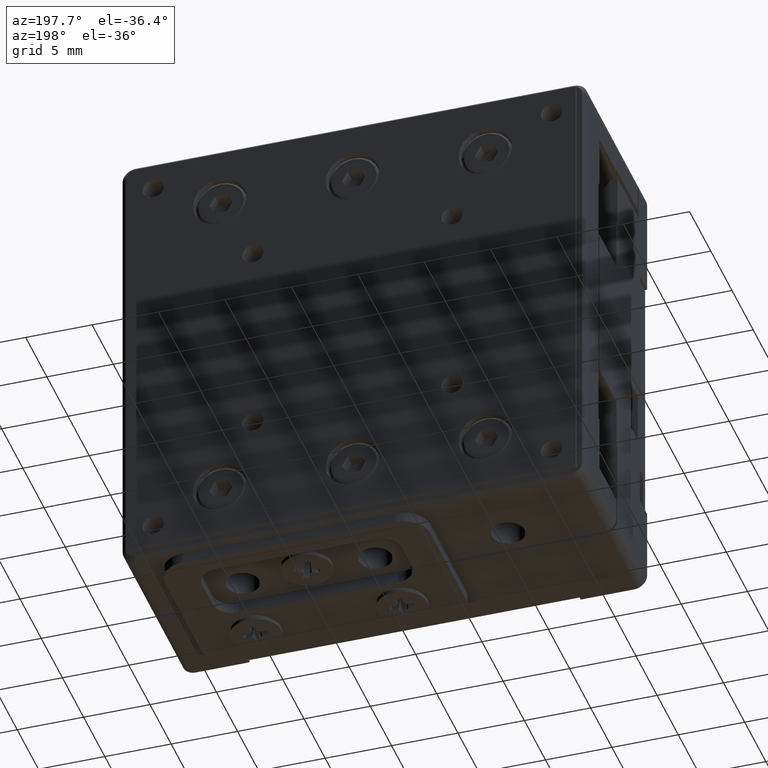
[diagram: clean part render]
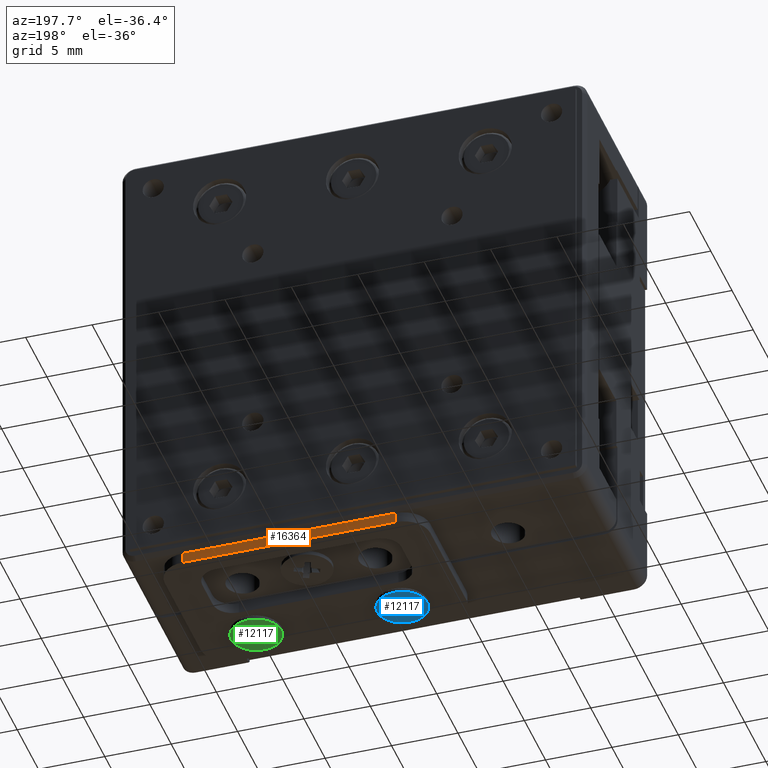
[diagram: same view with three faces highlighted in distinct colors, each labeled with its STEP entity id]
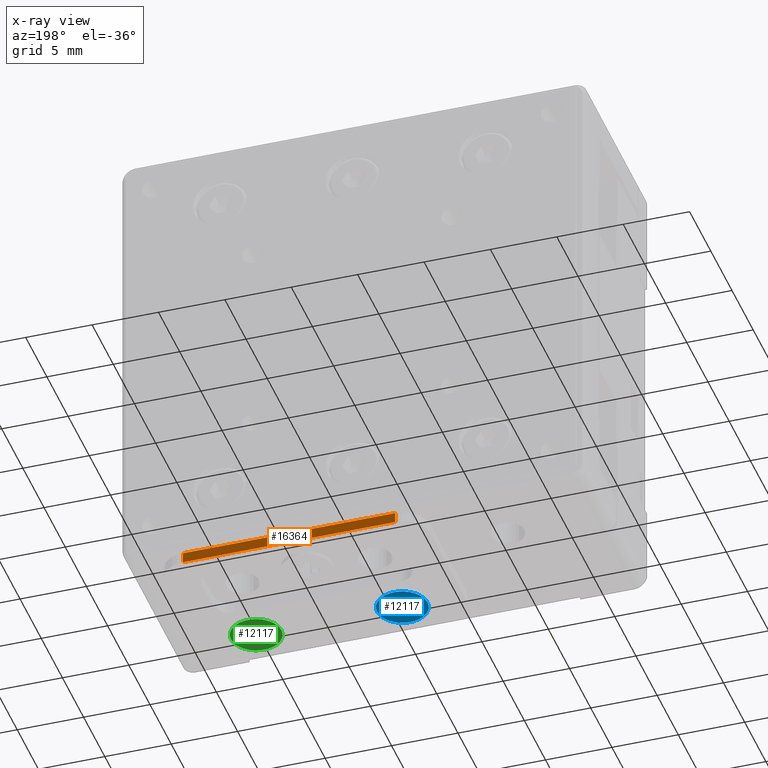
[diagram: x-ray of the same camera — body ghosted, the three highlighted faces saturated]
A machine part, auxiliary view with three faces highlighted in distinct colors.
The next image is the same camera in x-ray (body ghosted, the three faces saturated) — at least one of them is partly hidden behind the body in this view.
Their STEP definitions:

[orange] entity #16364 — the highlighted planar face has unit normal (0, 1, 0).
#423 = ORIENTED_EDGE ( 'NONE', *, *, #13116, .T. ) ;
#1296 = ORIENTED_EDGE ( 'NONE', *, *, #19234, .T. ) ;
#1572 = EDGE_LOOP ( 'NONE', ( #423, #18104, #17666, #1296 ) ) ;
#1905 = DIRECTION ( 'NONE',  ( 0.000000000000000000, -1.000000000000000000, 0.000000000000000000 ) ) ;
#3378 = LINE ( 'NONE', #19496, #11717 ) ;
#3629 = CARTESIAN_POINT ( 'NONE',  ( -8.000000000000000000, 0.7999999999999999334, 8.000000000000000000 ) ) ;
#3679 = VERTEX_POINT ( 'NONE', #3629 ) ;
#4121 = DIRECTION ( 'NONE',  ( 1.000000000000000000, 0.000000000000000000, -0.000000000000000000 ) ) ;
#4440 = DIRECTION ( 'NONE',  ( 1.000000000000000000, 0.000000000000000000, -0.000000000000000000 ) ) ;
#6765 = AXIS2_PLACEMENT_3D ( 'NONE', #7574, #9242, #4440 ) ;
#7297 = VECTOR ( 'NONE', #4121, 1000.000000000000000 ) ;
#7393 = DIRECTION ( 'NONE',  ( 0.000000000000000000, -1.000000000000000000, -0.000000000000000000 ) ) ;
#7574 = CARTESIAN_POINT ( 'NONE',  ( -10.00000000000000000, 0.000000000000000000, 8.000000000000000000 ) ) ;
#7807 = VERTEX_POINT ( 'NONE', #18874 ) ;
#7863 = EDGE_CURVE ( 'NONE', #9421, #3679, #3378, .T. ) ;
#8604 = LINE ( 'NONE', #10582, #7297 ) ;
#8756 = CARTESIAN_POINT ( 'NONE',  ( -8.000000000000000000, 0.000000000000000000, 8.000000000000000000 ) ) ;
#9242 = DIRECTION ( 'NONE',  ( 0.000000000000000000, 0.000000000000000000, 1.000000000000000000 ) ) ;
#9421 = VERTEX_POINT ( 'NONE', #9750 ) ;
#9750 = CARTESIAN_POINT ( 'NONE',  ( 8.000000000000000000, 0.7999999999999999334, 8.000000000000000000 ) ) ;
#9796 = VECTOR ( 'NONE', #1905, 1000.000000000000000 ) ;
#9867 = EDGE_CURVE ( 'NONE', #9421, #18343, #16223, .T. ) ;
#10582 = CARTESIAN_POINT ( 'NONE',  ( 0.000000000000000000, 0.000000000000000000, 8.000000000000000000 ) ) ;
#11178 = CARTESIAN_POINT ( 'NONE',  ( 8.000000000000000000, 3.285759999999999792, 8.000000000000000000 ) ) ;
#11717 = VECTOR ( 'NONE', #13048, 1000.000000000000000 ) ;
#13048 = DIRECTION ( 'NONE',  ( -1.000000000000000000, -0.000000000000000000, 0.000000000000000000 ) ) ;
#13116 = EDGE_CURVE ( 'NONE', #7807, #18343, #8604, .T. ) ;
#14291 = VECTOR ( 'NONE', #7393, 1000.000000000000000 ) ;
#16223 = LINE ( 'NONE', #11178, #9796 ) ;
#16364 = ADVANCED_FACE ( 'NONE', ( #20464 ), #19099, .T. ) ;
#16807 = LINE ( 'NONE', #8756, #14291 ) ;
#17666 = ORIENTED_EDGE ( 'NONE', *, *, #7863, .T. ) ;
#18104 = ORIENTED_EDGE ( 'NONE', *, *, #9867, .F. ) ;
#18223 = CARTESIAN_POINT ( 'NONE',  ( 8.000000000000000000, 0.000000000000000000, 8.000000000000000000 ) ) ;
#18343 = VERTEX_POINT ( 'NONE', #18223 ) ;
#18874 = CARTESIAN_POINT ( 'NONE',  ( -8.000000000000000000, 0.000000000000000000, 8.000000000000000000 ) ) ;
#19099 = PLANE ( 'NONE',  #6765 ) ;
#19234 = EDGE_CURVE ( 'NONE', #3679, #7807, #16807, .T. ) ;
#19496 = CARTESIAN_POINT ( 'NONE',  ( -10.00000000000000000, 0.7999999999999999334, 8.000000000000000000 ) ) ;
#20464 = FACE_OUTER_BOUND ( 'NONE', #1572, .T. ) ;

[blue] entity #12117 — the highlighted planar face has unit normal (0, 0, -1).
#59 = LINE ( 'NONE', #4682, #2468 ) ;
#284 = CIRCLE ( 'NONE', #4302, 0.4394121743303003313 ) ;
#330 = DIRECTION ( 'NONE',  ( 1.000000000000000000, -0.000000000000000000, -0.000000000000000000 ) ) ;
#538 = FACE_OUTER_BOUND ( 'NONE', #17590, .T. ) ;
#590 = ORIENTED_EDGE ( 'NONE', *, *, #8333, .F. ) ;
#657 = CARTESIAN_POINT ( 'NONE',  ( 1.002220675589673670E-16, -0.2399999999999968547, -0.9500000000000007327 ) ) ;
#757 = LINE ( 'NONE', #10887, #16289 ) ;
#779 = EDGE_CURVE ( 'NONE', #3892, #8625, #59, .T. ) ;
#809 = EDGE_CURVE ( 'NONE', #2818, #17322, #3142, .T. ) ;
#813 = CARTESIAN_POINT ( 'NONE',  ( 4.629057939017289816E-17, 0.9499999999999998446, -0.2400000000000000466 ) ) ;
#875 = VECTOR ( 'NONE', #7107, 1000.000000000000000 ) ;
#920 = CARTESIAN_POINT ( 'NONE',  ( -6.773263280100889453E-14, -0.2400000000000012124, 0.3680802343914785779 ) ) ;
#1839 = ORIENTED_EDGE ( 'NONE', *, *, #19083, .T. ) ;
#1997 = CARTESIAN_POINT ( 'NONE',  ( 9.527324427803042010E-17, -0.9499999999999998446, -0.2399999999999999079 ) ) ;
#2468 = VECTOR ( 'NONE', #9355, 1000.000000000000000 ) ;
#2818 = VERTEX_POINT ( 'NONE', #920 ) ;
#2920 = ORIENTED_EDGE ( 'NONE', *, *, #17542, .F. ) ;
#3142 = CIRCLE ( 'NONE', #13447, 0.4394121743303003313 ) ;
#3170 = DIRECTION ( 'NONE',  ( -0.000000000000000000, -1.000000000000000000, 0.000000000000000000 ) ) ;
#3377 = VERTEX_POINT ( 'NONE', #11560 ) ;
#3383 = VERTEX_POINT ( 'NONE', #17996 ) ;
#3799 = ORIENTED_EDGE ( 'NONE', *, *, #17901, .T. ) ;
#3837 = CARTESIAN_POINT ( 'NONE',  ( 0.000000000000000000, 0.2400000000000031830, -0.9499999999999994005 ) ) ;
#3892 = VERTEX_POINT ( 'NONE', #7228 ) ;
#4302 = AXIS2_PLACEMENT_3D ( 'NONE', #12860, #8288, #14661 ) ;
#4533 = EDGE_CURVE ( 'NONE', #5533, #12184, #19422, .T. ) ;
#4545 = EDGE_LOOP ( 'NONE', ( #19689, #3799, #11584, #11269, #590, #2920, #9097, #15741, #6477, #10857, #11025, #8271, #11774, #9369, #17151, #1839 ) ) ;
#4682 = CARTESIAN_POINT ( 'NONE',  ( -3.467458293293990454E-17, 0.9499999999999999556, 0.2399999999999998801 ) ) ;
#4752 = AXIS2_PLACEMENT_3D ( 'NONE', #8090, #17625, #14552 ) ;
#4861 = DIRECTION ( 'NONE',  ( 1.068157536718415803E-33, -1.000000000000000000, 1.426581805901979697E-17 ) ) ;
#4984 = CARTESIAN_POINT ( 'NONE',  ( 0.000000000000000000, 0.000000000000000000, 0.000000000000000000 ) ) ;
#4998 = EDGE_CURVE ( 'NONE', #20382, #9198, #284, .T. ) ;
#5202 = DIRECTION ( 'NONE',  ( 0.000000000000000000, -3.377354794370974807E-15, 1.000000000000000000 ) ) ;
#5428 = DIRECTION ( 'NONE',  ( 1.000000000000000000, -0.000000000000000000, -0.000000000000000000 ) ) ;
#5533 = VERTEX_POINT ( 'NONE', #12048 ) ;
#5884 = CARTESIAN_POINT ( 'NONE',  ( 0.000000000000000000, 0.000000000000000000, 0.000000000000000000 ) ) ;
#5989 = VERTEX_POINT ( 'NONE', #657 ) ;
#6123 = VECTOR ( 'NONE', #4861, 1000.000000000000000 ) ;
#6227 = CARTESIAN_POINT ( 'NONE',  ( 0.000000000000000000, -0.9500000000000000666, -0.2399999999999999079 ) ) ;
#6246 = LINE ( 'NONE', #10714, #20590 ) ;
#6279 = CIRCLE ( 'NONE', #10604, 0.4394121743303003313 ) ;
#6477 = ORIENTED_EDGE ( 'NONE', *, *, #9061, .F. ) ;
#6515 = PLANE ( 'NONE',  #4752 ) ;
#6704 = DIRECTION ( 'NONE',  ( 0.000000000000000000, 3.552713678800500929E-15, 1.000000000000000000 ) ) ;
#6946 = VECTOR ( 'NONE', #16562, 1000.000000000000000 ) ;
#7107 = DIRECTION ( 'NONE',  ( 0.000000000000000000, 1.000000000000000000, -1.141265444721583757E-16 ) ) ;
#7228 = CARTESIAN_POINT ( 'NONE',  ( 6.928367883583635394E-17, 0.9499999999999999556, 0.2399999999999998801 ) ) ;
#7230 = CARTESIAN_POINT ( 'NONE',  ( -1.228515883797645270E-16, -0.9499999999999999556, 0.2400000000000001854 ) ) ;
#7558 = DIRECTION ( 'NONE',  ( -1.000000000000000000, -0.000000000000000000, -0.000000000000000000 ) ) ;
#7573 = CARTESIAN_POINT ( 'NONE',  ( -5.790493609334357022E-49, 0.9499999999999994005, -0.2399999999999999356 ) ) ;
#7746 = EDGE_CURVE ( 'NONE', #19964, #19964, #20473, .T. ) ;
#7792 = LINE ( 'NONE', #7573, #6123 ) ;
#8090 = CARTESIAN_POINT ( 'NONE',  ( 0.000000000000000000, 0.000000000000000000, 0.000000000000000000 ) ) ;
#8191 = CARTESIAN_POINT ( 'NONE',  ( -6.772928138228840869E-14, 0.2399999999999986311, 0.3680802343914802988 ) ) ;
#8271 = ORIENTED_EDGE ( 'NONE', *, *, #13903, .T. ) ;
#8288 = DIRECTION ( 'NONE',  ( 1.000000000000000000, -0.000000000000000000, -0.000000000000000000 ) ) ;
#8333 = EDGE_CURVE ( 'NONE', #17793, #17322, #13204, .T. ) ;
#8354 = CARTESIAN_POINT ( 'NONE',  ( 0.000000000000000000, 0.000000000000000000, 0.000000000000000000 ) ) ;
#8476 = FACE_BOUND ( 'NONE', #4545, .T. ) ;
#8625 = VERTEX_POINT ( 'NONE', #813 ) ;
#8715 = CARTESIAN_POINT ( 'NONE',  ( 1.507778490468427891E-46, -0.2399999999999967715, -0.9500000000000001776 ) ) ;
#9061 = EDGE_CURVE ( 'NONE', #5989, #9198, #20142, .T. ) ;
#9097 = ORIENTED_EDGE ( 'NONE', *, *, #20721, .F. ) ;
#9109 = EDGE_CURVE ( 'NONE', #8625, #3377, #7792, .T. ) ;
#9198 = VERTEX_POINT ( 'NONE', #14352 ) ;
#9248 = AXIS2_PLACEMENT_3D ( 'NONE', #14549, #330, #6704 ) ;
#9355 = DIRECTION ( 'NONE',  ( -9.019606957008805948E-17, -1.809053587152092990E-16, -1.000000000000000000 ) ) ;
#9369 = ORIENTED_EDGE ( 'NONE', *, *, #779, .F. ) ;
#9405 = VECTOR ( 'NONE', #17529, 1000.000000000000000 ) ;
#9475 = DIRECTION ( 'NONE',  ( 0.000000000000000000, 3.477215520784114079E-15, -1.000000000000000000 ) ) ;
#9588 = LINE ( 'NONE', #17562, #19316 ) ;
#9806 = VERTEX_POINT ( 'NONE', #1997 ) ;
#9943 = CARTESIAN_POINT ( 'NONE',  ( 9.265723819488893651E-35, -0.9499999999999995115, 0.2400000000000000744 ) ) ;
#10178 = CARTESIAN_POINT ( 'NONE',  ( 1.655891006706625286E-33, 0.2399999999999965772, 0.9500000000000000666 ) ) ;
#10604 = AXIS2_PLACEMENT_3D ( 'NONE', #8354, #5428, #14727 ) ;
#10714 = CARTESIAN_POINT ( 'NONE',  ( 3.387363136371659804E-46, 0.2399999999999965772, 0.9500000000000000666 ) ) ;
#10857 = ORIENTED_EDGE ( 'NONE', *, *, #14689, .F. ) ;
#10887 = CARTESIAN_POINT ( 'NONE',  ( 0.000000000000000000, 0.000000000000000000, 0.9500000000000007327 ) ) ;
#11025 = ORIENTED_EDGE ( 'NONE', *, *, #4533, .F. ) ;
#11269 = ORIENTED_EDGE ( 'NONE', *, *, #809, .T. ) ;
#11361 = EDGE_CURVE ( 'NONE', #3383, #19851, #6246, .T. ) ;
#11399 = CARTESIAN_POINT ( 'NONE',  ( -6.773235427690838889E-14, 0.3680802343914794106, 0.2399999999999999356 ) ) ;
#11503 = LINE ( 'NONE', #9943, #875 ) ;
#11560 = CARTESIAN_POINT ( 'NONE',  ( -6.773118397813096481E-14, 0.3680802343914794106, -0.2399999999999999356 ) ) ;
#11576 = CARTESIAN_POINT ( 'NONE',  ( -6.773305892961689956E-14, -0.3680802343914794106, -0.2399999999999999356 ) ) ;
#11584 = ORIENTED_EDGE ( 'NONE', *, *, #14472, .F. ) ;
#11652 = LINE ( 'NONE', #3837, #14261 ) ;
#11774 = ORIENTED_EDGE ( 'NONE', *, *, #9109, .F. ) ;
#12048 = CARTESIAN_POINT ( 'NONE',  ( -6.773252737391129529E-14, 0.2400000000000011846, -0.3680802343914785779 ) ) ;
#12075 = VECTOR ( 'NONE', #18278, 1000.000000000000000 ) ;
#12117 = ADVANCED_FACE ( 'NONE', ( #8476, #538 ), #6515, .T. ) ;
#12154 = CARTESIAN_POINT ( 'NONE',  ( -6.773413565459114898E-14, -0.3680802343914793551, 0.2400000000000000466 ) ) ;
#12156 = VECTOR ( 'NONE', #14500, 1000.000000000000000 ) ;
#12184 = VERTEX_POINT ( 'NONE', #16539 ) ;
#12388 = AXIS2_PLACEMENT_3D ( 'NONE', #5884, #7558, #17290 ) ;
#12419 = VECTOR ( 'NONE', #19838, 1000.000000000000000 ) ;
#12790 = CARTESIAN_POINT ( 'NONE',  ( -8.652273975723844260E-18, -0.2400000000000023781, 0.9499999999999997335 ) ) ;
#12860 = CARTESIAN_POINT ( 'NONE',  ( 0.000000000000000000, 0.000000000000000000, 0.000000000000000000 ) ) ;
#12977 = ORIENTED_EDGE ( 'NONE', *, *, #7746, .T. ) ;
#13204 = LINE ( 'NONE', #13927, #12075 ) ;
#13447 = AXIS2_PLACEMENT_3D ( 'NONE', #4984, #17328, #17653 ) ;
#13725 = CARTESIAN_POINT ( 'NONE',  ( 0.000000000000000000, 0.000000000000000000, 1.899999999999999689 ) ) ;
#13903 = EDGE_CURVE ( 'NONE', #5533, #3377, #20289, .T. ) ;
#13927 = CARTESIAN_POINT ( 'NONE',  ( -4.245865956828351828E-48, -0.9499999999999995115, 0.2400000000000000744 ) ) ;
#14261 = VECTOR ( 'NONE', #16579, 1000.000000000000000 ) ;
#14352 = CARTESIAN_POINT ( 'NONE',  ( -6.773591702644593092E-14, -0.2399999999999987421, -0.3680802343914801877 ) ) ;
#14472 = EDGE_CURVE ( 'NONE', #2818, #15978, #9588, .T. ) ;
#14500 = DIRECTION ( 'NONE',  ( 1.068157536718415803E-33, -1.000000000000000000, 1.426581805901979697E-17 ) ) ;
#14549 = CARTESIAN_POINT ( 'NONE',  ( 0.000000000000000000, 0.000000000000000000, 0.000000000000000000 ) ) ;
#14552 = DIRECTION ( 'NONE',  ( 0.000000000000000000, 0.000000000000000000, 1.000000000000000000 ) ) ;
#14661 = DIRECTION ( 'NONE',  ( 0.000000000000000000, 0.000000000000000000, 1.000000000000000000 ) ) ;
#14689 = EDGE_CURVE ( 'NONE', #12184, #5989, #11652, .T. ) ;
#14727 = DIRECTION ( 'NONE',  ( 0.000000000000000000, -2.664535259100375697E-15, 1.000000000000000000 ) ) ;
#15169 = VERTEX_POINT ( 'NONE', #11399 ) ;
#15741 = ORIENTED_EDGE ( 'NONE', *, *, #4998, .T. ) ;
#15978 = VERTEX_POINT ( 'NONE', #12790 ) ;
#15983 = CARTESIAN_POINT ( 'NONE',  ( -6.215819833977352109E-34, 0.9499999999999994005, -0.2399999999999999356 ) ) ;
#16045 = LINE ( 'NONE', #6227, #9405 ) ;
#16289 = VECTOR ( 'NONE', #3170, 1000.000000000000000 ) ;
#16539 = CARTESIAN_POINT ( 'NONE',  ( 8.084187314681633650E-17, 0.2400000000000032108, -0.9499999999999991784 ) ) ;
#16562 = DIRECTION ( 'NONE',  ( 0.000000000000000000, 3.477215520784114079E-15, -1.000000000000000000 ) ) ;
#16579 = DIRECTION ( 'NONE',  ( 1.304014280046985622E-15, -1.000000000000000000, -2.615448458298323106E-15 ) ) ;
#17151 = ORIENTED_EDGE ( 'NONE', *, *, #19957, .F. ) ;
#17290 = DIRECTION ( 'NONE',  ( 0.000000000000000000, 0.000000000000000000, 1.000000000000000000 ) ) ;
#17322 = VERTEX_POINT ( 'NONE', #12154 ) ;
#17328 = DIRECTION ( 'NONE',  ( 1.000000000000000000, -0.000000000000000000, -0.000000000000000000 ) ) ;
#17351 = LINE ( 'NONE', #15983, #12156 ) ;
#17529 = DIRECTION ( 'NONE',  ( -9.019606957008810878E-17, 1.809053587152092250E-16, 1.000000000000000000 ) ) ;
#17542 = EDGE_CURVE ( 'NONE', #9806, #17793, #16045, .T. ) ;
#17562 = CARTESIAN_POINT ( 'NONE',  ( -4.389215070400932725E-34, -0.2399999999999967715, -0.9500000000000001776 ) ) ;
#17590 = EDGE_LOOP ( 'NONE', ( #12977 ) ) ;
#17625 = DIRECTION ( 'NONE',  ( -1.000000000000000000, 0.000000000000000000, 0.000000000000000000 ) ) ;
#17653 = DIRECTION ( 'NONE',  ( 0.000000000000000000, 0.000000000000000000, 1.000000000000000000 ) ) ;
#17793 = VERTEX_POINT ( 'NONE', #7230 ) ;
#17901 = EDGE_CURVE ( 'NONE', #3383, #15978, #757, .T. ) ;
#17996 = CARTESIAN_POINT ( 'NONE',  ( 8.167823152292017452E-17, 0.2399999999999966882, 0.9500000000000007327 ) ) ;
#18278 = DIRECTION ( 'NONE',  ( 0.000000000000000000, 1.000000000000000000, -1.141265444721583757E-16 ) ) ;
#19083 = EDGE_CURVE ( 'NONE', #15169, #19851, #6279, .T. ) ;
#19316 = VECTOR ( 'NONE', #5202, 1000.000000000000000 ) ;
#19422 = LINE ( 'NONE', #10178, #6946 ) ;
#19689 = ORIENTED_EDGE ( 'NONE', *, *, #11361, .F. ) ;
#19838 = DIRECTION ( 'NONE',  ( 0.000000000000000000, -3.377354794370974807E-15, 1.000000000000000000 ) ) ;
#19851 = VERTEX_POINT ( 'NONE', #8191 ) ;
#19957 = EDGE_CURVE ( 'NONE', #15169, #3892, #11503, .T. ) ;
#19964 = VERTEX_POINT ( 'NONE', #13725 ) ;
#20142 = LINE ( 'NONE', #8715, #12419 ) ;
#20289 = CIRCLE ( 'NONE', #9248, 0.4394121743303003313 ) ;
#20382 = VERTEX_POINT ( 'NONE', #11576 ) ;
#20473 = CIRCLE ( 'NONE', #12388, 1.899999999999999689 ) ;
#20590 = VECTOR ( 'NONE', #9475, 1000.000000000000000 ) ;
#20721 = EDGE_CURVE ( 'NONE', #20382, #9806, #17351, .T. ) ;

[green] entity #12117 — the highlighted planar face has unit normal (0, 0, -1).
#59 = LINE ( 'NONE', #4682, #2468 ) ;
#284 = CIRCLE ( 'NONE', #4302, 0.4394121743303003313 ) ;
#330 = DIRECTION ( 'NONE',  ( 1.000000000000000000, -0.000000000000000000, -0.000000000000000000 ) ) ;
#538 = FACE_OUTER_BOUND ( 'NONE', #17590, .T. ) ;
#590 = ORIENTED_EDGE ( 'NONE', *, *, #8333, .F. ) ;
#657 = CARTESIAN_POINT ( 'NONE',  ( 1.002220675589673670E-16, -0.2399999999999968547, -0.9500000000000007327 ) ) ;
#757 = LINE ( 'NONE', #10887, #16289 ) ;
#779 = EDGE_CURVE ( 'NONE', #3892, #8625, #59, .T. ) ;
#809 = EDGE_CURVE ( 'NONE', #2818, #17322, #3142, .T. ) ;
#813 = CARTESIAN_POINT ( 'NONE',  ( 4.629057939017289816E-17, 0.9499999999999998446, -0.2400000000000000466 ) ) ;
#875 = VECTOR ( 'NONE', #7107, 1000.000000000000000 ) ;
#920 = CARTESIAN_POINT ( 'NONE',  ( -6.773263280100889453E-14, -0.2400000000000012124, 0.3680802343914785779 ) ) ;
#1839 = ORIENTED_EDGE ( 'NONE', *, *, #19083, .T. ) ;
#1997 = CARTESIAN_POINT ( 'NONE',  ( 9.527324427803042010E-17, -0.9499999999999998446, -0.2399999999999999079 ) ) ;
#2468 = VECTOR ( 'NONE', #9355, 1000.000000000000000 ) ;
#2818 = VERTEX_POINT ( 'NONE', #920 ) ;
#2920 = ORIENTED_EDGE ( 'NONE', *, *, #17542, .F. ) ;
#3142 = CIRCLE ( 'NONE', #13447, 0.4394121743303003313 ) ;
#3170 = DIRECTION ( 'NONE',  ( -0.000000000000000000, -1.000000000000000000, 0.000000000000000000 ) ) ;
#3377 = VERTEX_POINT ( 'NONE', #11560 ) ;
#3383 = VERTEX_POINT ( 'NONE', #17996 ) ;
#3799 = ORIENTED_EDGE ( 'NONE', *, *, #17901, .T. ) ;
#3837 = CARTESIAN_POINT ( 'NONE',  ( 0.000000000000000000, 0.2400000000000031830, -0.9499999999999994005 ) ) ;
#3892 = VERTEX_POINT ( 'NONE', #7228 ) ;
#4302 = AXIS2_PLACEMENT_3D ( 'NONE', #12860, #8288, #14661 ) ;
#4533 = EDGE_CURVE ( 'NONE', #5533, #12184, #19422, .T. ) ;
#4545 = EDGE_LOOP ( 'NONE', ( #19689, #3799, #11584, #11269, #590, #2920, #9097, #15741, #6477, #10857, #11025, #8271, #11774, #9369, #17151, #1839 ) ) ;
#4682 = CARTESIAN_POINT ( 'NONE',  ( -3.467458293293990454E-17, 0.9499999999999999556, 0.2399999999999998801 ) ) ;
#4752 = AXIS2_PLACEMENT_3D ( 'NONE', #8090, #17625, #14552 ) ;
#4861 = DIRECTION ( 'NONE',  ( 1.068157536718415803E-33, -1.000000000000000000, 1.426581805901979697E-17 ) ) ;
#4984 = CARTESIAN_POINT ( 'NONE',  ( 0.000000000000000000, 0.000000000000000000, 0.000000000000000000 ) ) ;
#4998 = EDGE_CURVE ( 'NONE', #20382, #9198, #284, .T. ) ;
#5202 = DIRECTION ( 'NONE',  ( 0.000000000000000000, -3.377354794370974807E-15, 1.000000000000000000 ) ) ;
#5428 = DIRECTION ( 'NONE',  ( 1.000000000000000000, -0.000000000000000000, -0.000000000000000000 ) ) ;
#5533 = VERTEX_POINT ( 'NONE', #12048 ) ;
#5884 = CARTESIAN_POINT ( 'NONE',  ( 0.000000000000000000, 0.000000000000000000, 0.000000000000000000 ) ) ;
#5989 = VERTEX_POINT ( 'NONE', #657 ) ;
#6123 = VECTOR ( 'NONE', #4861, 1000.000000000000000 ) ;
#6227 = CARTESIAN_POINT ( 'NONE',  ( 0.000000000000000000, -0.9500000000000000666, -0.2399999999999999079 ) ) ;
#6246 = LINE ( 'NONE', #10714, #20590 ) ;
#6279 = CIRCLE ( 'NONE', #10604, 0.4394121743303003313 ) ;
#6477 = ORIENTED_EDGE ( 'NONE', *, *, #9061, .F. ) ;
#6515 = PLANE ( 'NONE',  #4752 ) ;
#6704 = DIRECTION ( 'NONE',  ( 0.000000000000000000, 3.552713678800500929E-15, 1.000000000000000000 ) ) ;
#6946 = VECTOR ( 'NONE', #16562, 1000.000000000000000 ) ;
#7107 = DIRECTION ( 'NONE',  ( 0.000000000000000000, 1.000000000000000000, -1.141265444721583757E-16 ) ) ;
#7228 = CARTESIAN_POINT ( 'NONE',  ( 6.928367883583635394E-17, 0.9499999999999999556, 0.2399999999999998801 ) ) ;
#7230 = CARTESIAN_POINT ( 'NONE',  ( -1.228515883797645270E-16, -0.9499999999999999556, 0.2400000000000001854 ) ) ;
#7558 = DIRECTION ( 'NONE',  ( -1.000000000000000000, -0.000000000000000000, -0.000000000000000000 ) ) ;
#7573 = CARTESIAN_POINT ( 'NONE',  ( -5.790493609334357022E-49, 0.9499999999999994005, -0.2399999999999999356 ) ) ;
#7746 = EDGE_CURVE ( 'NONE', #19964, #19964, #20473, .T. ) ;
#7792 = LINE ( 'NONE', #7573, #6123 ) ;
#8090 = CARTESIAN_POINT ( 'NONE',  ( 0.000000000000000000, 0.000000000000000000, 0.000000000000000000 ) ) ;
#8191 = CARTESIAN_POINT ( 'NONE',  ( -6.772928138228840869E-14, 0.2399999999999986311, 0.3680802343914802988 ) ) ;
#8271 = ORIENTED_EDGE ( 'NONE', *, *, #13903, .T. ) ;
#8288 = DIRECTION ( 'NONE',  ( 1.000000000000000000, -0.000000000000000000, -0.000000000000000000 ) ) ;
#8333 = EDGE_CURVE ( 'NONE', #17793, #17322, #13204, .T. ) ;
#8354 = CARTESIAN_POINT ( 'NONE',  ( 0.000000000000000000, 0.000000000000000000, 0.000000000000000000 ) ) ;
#8476 = FACE_BOUND ( 'NONE', #4545, .T. ) ;
#8625 = VERTEX_POINT ( 'NONE', #813 ) ;
#8715 = CARTESIAN_POINT ( 'NONE',  ( 1.507778490468427891E-46, -0.2399999999999967715, -0.9500000000000001776 ) ) ;
#9061 = EDGE_CURVE ( 'NONE', #5989, #9198, #20142, .T. ) ;
#9097 = ORIENTED_EDGE ( 'NONE', *, *, #20721, .F. ) ;
#9109 = EDGE_CURVE ( 'NONE', #8625, #3377, #7792, .T. ) ;
#9198 = VERTEX_POINT ( 'NONE', #14352 ) ;
#9248 = AXIS2_PLACEMENT_3D ( 'NONE', #14549, #330, #6704 ) ;
#9355 = DIRECTION ( 'NONE',  ( -9.019606957008805948E-17, -1.809053587152092990E-16, -1.000000000000000000 ) ) ;
#9369 = ORIENTED_EDGE ( 'NONE', *, *, #779, .F. ) ;
#9405 = VECTOR ( 'NONE', #17529, 1000.000000000000000 ) ;
#9475 = DIRECTION ( 'NONE',  ( 0.000000000000000000, 3.477215520784114079E-15, -1.000000000000000000 ) ) ;
#9588 = LINE ( 'NONE', #17562, #19316 ) ;
#9806 = VERTEX_POINT ( 'NONE', #1997 ) ;
#9943 = CARTESIAN_POINT ( 'NONE',  ( 9.265723819488893651E-35, -0.9499999999999995115, 0.2400000000000000744 ) ) ;
#10178 = CARTESIAN_POINT ( 'NONE',  ( 1.655891006706625286E-33, 0.2399999999999965772, 0.9500000000000000666 ) ) ;
#10604 = AXIS2_PLACEMENT_3D ( 'NONE', #8354, #5428, #14727 ) ;
#10714 = CARTESIAN_POINT ( 'NONE',  ( 3.387363136371659804E-46, 0.2399999999999965772, 0.9500000000000000666 ) ) ;
#10857 = ORIENTED_EDGE ( 'NONE', *, *, #14689, .F. ) ;
#10887 = CARTESIAN_POINT ( 'NONE',  ( 0.000000000000000000, 0.000000000000000000, 0.9500000000000007327 ) ) ;
#11025 = ORIENTED_EDGE ( 'NONE', *, *, #4533, .F. ) ;
#11269 = ORIENTED_EDGE ( 'NONE', *, *, #809, .T. ) ;
#11361 = EDGE_CURVE ( 'NONE', #3383, #19851, #6246, .T. ) ;
#11399 = CARTESIAN_POINT ( 'NONE',  ( -6.773235427690838889E-14, 0.3680802343914794106, 0.2399999999999999356 ) ) ;
#11503 = LINE ( 'NONE', #9943, #875 ) ;
#11560 = CARTESIAN_POINT ( 'NONE',  ( -6.773118397813096481E-14, 0.3680802343914794106, -0.2399999999999999356 ) ) ;
#11576 = CARTESIAN_POINT ( 'NONE',  ( -6.773305892961689956E-14, -0.3680802343914794106, -0.2399999999999999356 ) ) ;
#11584 = ORIENTED_EDGE ( 'NONE', *, *, #14472, .F. ) ;
#11652 = LINE ( 'NONE', #3837, #14261 ) ;
#11774 = ORIENTED_EDGE ( 'NONE', *, *, #9109, .F. ) ;
#12048 = CARTESIAN_POINT ( 'NONE',  ( -6.773252737391129529E-14, 0.2400000000000011846, -0.3680802343914785779 ) ) ;
#12075 = VECTOR ( 'NONE', #18278, 1000.000000000000000 ) ;
#12117 = ADVANCED_FACE ( 'NONE', ( #8476, #538 ), #6515, .T. ) ;
#12154 = CARTESIAN_POINT ( 'NONE',  ( -6.773413565459114898E-14, -0.3680802343914793551, 0.2400000000000000466 ) ) ;
#12156 = VECTOR ( 'NONE', #14500, 1000.000000000000000 ) ;
#12184 = VERTEX_POINT ( 'NONE', #16539 ) ;
#12388 = AXIS2_PLACEMENT_3D ( 'NONE', #5884, #7558, #17290 ) ;
#12419 = VECTOR ( 'NONE', #19838, 1000.000000000000000 ) ;
#12790 = CARTESIAN_POINT ( 'NONE',  ( -8.652273975723844260E-18, -0.2400000000000023781, 0.9499999999999997335 ) ) ;
#12860 = CARTESIAN_POINT ( 'NONE',  ( 0.000000000000000000, 0.000000000000000000, 0.000000000000000000 ) ) ;
#12977 = ORIENTED_EDGE ( 'NONE', *, *, #7746, .T. ) ;
#13204 = LINE ( 'NONE', #13927, #12075 ) ;
#13447 = AXIS2_PLACEMENT_3D ( 'NONE', #4984, #17328, #17653 ) ;
#13725 = CARTESIAN_POINT ( 'NONE',  ( 0.000000000000000000, 0.000000000000000000, 1.899999999999999689 ) ) ;
#13903 = EDGE_CURVE ( 'NONE', #5533, #3377, #20289, .T. ) ;
#13927 = CARTESIAN_POINT ( 'NONE',  ( -4.245865956828351828E-48, -0.9499999999999995115, 0.2400000000000000744 ) ) ;
#14261 = VECTOR ( 'NONE', #16579, 1000.000000000000000 ) ;
#14352 = CARTESIAN_POINT ( 'NONE',  ( -6.773591702644593092E-14, -0.2399999999999987421, -0.3680802343914801877 ) ) ;
#14472 = EDGE_CURVE ( 'NONE', #2818, #15978, #9588, .T. ) ;
#14500 = DIRECTION ( 'NONE',  ( 1.068157536718415803E-33, -1.000000000000000000, 1.426581805901979697E-17 ) ) ;
#14549 = CARTESIAN_POINT ( 'NONE',  ( 0.000000000000000000, 0.000000000000000000, 0.000000000000000000 ) ) ;
#14552 = DIRECTION ( 'NONE',  ( 0.000000000000000000, 0.000000000000000000, 1.000000000000000000 ) ) ;
#14661 = DIRECTION ( 'NONE',  ( 0.000000000000000000, 0.000000000000000000, 1.000000000000000000 ) ) ;
#14689 = EDGE_CURVE ( 'NONE', #12184, #5989, #11652, .T. ) ;
#14727 = DIRECTION ( 'NONE',  ( 0.000000000000000000, -2.664535259100375697E-15, 1.000000000000000000 ) ) ;
#15169 = VERTEX_POINT ( 'NONE', #11399 ) ;
#15741 = ORIENTED_EDGE ( 'NONE', *, *, #4998, .T. ) ;
#15978 = VERTEX_POINT ( 'NONE', #12790 ) ;
#15983 = CARTESIAN_POINT ( 'NONE',  ( -6.215819833977352109E-34, 0.9499999999999994005, -0.2399999999999999356 ) ) ;
#16045 = LINE ( 'NONE', #6227, #9405 ) ;
#16289 = VECTOR ( 'NONE', #3170, 1000.000000000000000 ) ;
#16539 = CARTESIAN_POINT ( 'NONE',  ( 8.084187314681633650E-17, 0.2400000000000032108, -0.9499999999999991784 ) ) ;
#16562 = DIRECTION ( 'NONE',  ( 0.000000000000000000, 3.477215520784114079E-15, -1.000000000000000000 ) ) ;
#16579 = DIRECTION ( 'NONE',  ( 1.304014280046985622E-15, -1.000000000000000000, -2.615448458298323106E-15 ) ) ;
#17151 = ORIENTED_EDGE ( 'NONE', *, *, #19957, .F. ) ;
#17290 = DIRECTION ( 'NONE',  ( 0.000000000000000000, 0.000000000000000000, 1.000000000000000000 ) ) ;
#17322 = VERTEX_POINT ( 'NONE', #12154 ) ;
#17328 = DIRECTION ( 'NONE',  ( 1.000000000000000000, -0.000000000000000000, -0.000000000000000000 ) ) ;
#17351 = LINE ( 'NONE', #15983, #12156 ) ;
#17529 = DIRECTION ( 'NONE',  ( -9.019606957008810878E-17, 1.809053587152092250E-16, 1.000000000000000000 ) ) ;
#17542 = EDGE_CURVE ( 'NONE', #9806, #17793, #16045, .T. ) ;
#17562 = CARTESIAN_POINT ( 'NONE',  ( -4.389215070400932725E-34, -0.2399999999999967715, -0.9500000000000001776 ) ) ;
#17590 = EDGE_LOOP ( 'NONE', ( #12977 ) ) ;
#17625 = DIRECTION ( 'NONE',  ( -1.000000000000000000, 0.000000000000000000, 0.000000000000000000 ) ) ;
#17653 = DIRECTION ( 'NONE',  ( 0.000000000000000000, 0.000000000000000000, 1.000000000000000000 ) ) ;
#17793 = VERTEX_POINT ( 'NONE', #7230 ) ;
#17901 = EDGE_CURVE ( 'NONE', #3383, #15978, #757, .T. ) ;
#17996 = CARTESIAN_POINT ( 'NONE',  ( 8.167823152292017452E-17, 0.2399999999999966882, 0.9500000000000007327 ) ) ;
#18278 = DIRECTION ( 'NONE',  ( 0.000000000000000000, 1.000000000000000000, -1.141265444721583757E-16 ) ) ;
#19083 = EDGE_CURVE ( 'NONE', #15169, #19851, #6279, .T. ) ;
#19316 = VECTOR ( 'NONE', #5202, 1000.000000000000000 ) ;
#19422 = LINE ( 'NONE', #10178, #6946 ) ;
#19689 = ORIENTED_EDGE ( 'NONE', *, *, #11361, .F. ) ;
#19838 = DIRECTION ( 'NONE',  ( 0.000000000000000000, -3.377354794370974807E-15, 1.000000000000000000 ) ) ;
#19851 = VERTEX_POINT ( 'NONE', #8191 ) ;
#19957 = EDGE_CURVE ( 'NONE', #15169, #3892, #11503, .T. ) ;
#19964 = VERTEX_POINT ( 'NONE', #13725 ) ;
#20142 = LINE ( 'NONE', #8715, #12419 ) ;
#20289 = CIRCLE ( 'NONE', #9248, 0.4394121743303003313 ) ;
#20382 = VERTEX_POINT ( 'NONE', #11576 ) ;
#20473 = CIRCLE ( 'NONE', #12388, 1.899999999999999689 ) ;
#20590 = VECTOR ( 'NONE', #9475, 1000.000000000000000 ) ;
#20721 = EDGE_CURVE ( 'NONE', #20382, #9806, #17351, .T. ) ;